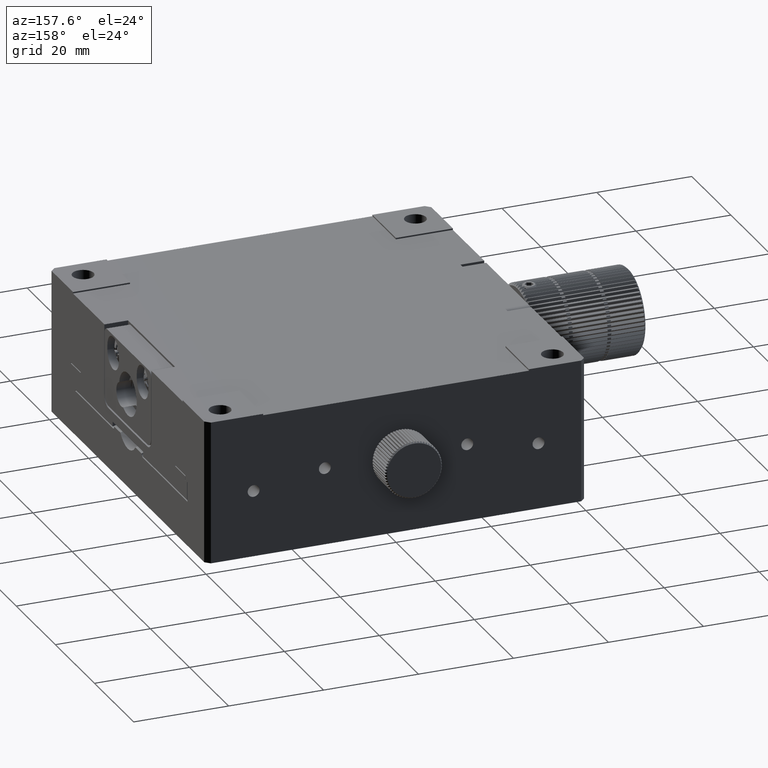
[diagram: clean part render]
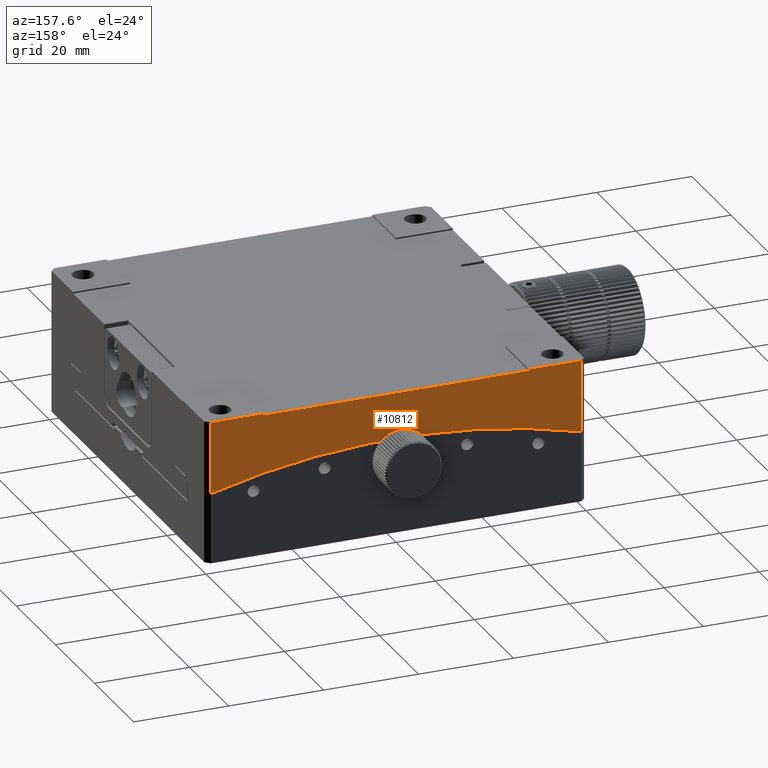
[diagram: same view with one face highlighted and labeled with its STEP entity id]
A machine part, auxiliary view. The second image highlights one B-rep face of the part: STEP entity #10812.
In plain terms, the highlighted planar face has unit normal (0, 1, 0).
Its self-contained STEP definition (entity closure, byte-faithful):
#410 = EDGE_CURVE ( 'NONE', #2517, #2296, #16471, .T. ) ;
#2296 = VERTEX_POINT ( 'NONE', #67044 ) ;
#2517 = VERTEX_POINT ( 'NONE', #58942 ) ;
#2562 = DIRECTION ( 'NONE',  ( -0.000000000000000000, -1.000000000000000000, -0.000000000000000000 ) ) ;
#4536 = LINE ( 'NONE', #41688, #50260 ) ;
#4718 = ORIENTED_EDGE ( 'NONE', *, *, #36784, .T. ) ;
#8998 = CARTESIAN_POINT ( 'NONE',  ( 28.00000000000001066, 40.00000000000002132, 160.0000000000000284 ) ) ;
#9535 = EDGE_CURVE ( 'NONE', #67795, #72559, #40634, .T. ) ;
#9742 = DIRECTION ( 'NONE',  ( 0.000000000000000000, -0.000000000000000000, 1.000000000000000000 ) ) ;
#10223 = EDGE_CURVE ( 'NONE', #72559, #29376, #33324, .T. ) ;
#10812 = ADVANCED_FACE ( 'NONE', ( #69189 ), #74961, .T. ) ;
#10897 = CARTESIAN_POINT ( 'NONE',  ( 39.00000000000000000, 40.00000000000002132, 160.0000000000000284 ) ) ;
#11190 = ORIENTED_EDGE ( 'NONE', *, *, #410, .F. ) ;
#13927 = DIRECTION ( 'NONE',  ( 0.000000000000000000, -0.000000000000000000, 1.000000000000000000 ) ) ;
#16471 = LINE ( 'NONE', #47355, #39823 ) ;
#19631 = LINE ( 'NONE', #39046, #61367 ) ;
#23464 = DIRECTION ( 'NONE',  ( -1.000000000000000000, -0.000000000000000000, 0.000000000000000000 ) ) ;
#23476 = AXIS2_PLACEMENT_3D ( 'NONE', #59069, #2562, #27755 ) ;
#23944 = DIRECTION ( 'NONE',  ( 0.000000000000000000, -0.000000000000000000, 1.000000000000000000 ) ) ;
#25509 = EDGE_CURVE ( 'NONE', #2296, #49519, #71271, .T. ) ;
#27755 = DIRECTION ( 'NONE',  ( 0.000000000000000000, 0.000000000000000000, -1.000000000000000000 ) ) ;
#29138 = ORIENTED_EDGE ( 'NONE', *, *, #25509, .F. ) ;
#29376 = VERTEX_POINT ( 'NONE', #47934 ) ;
#31680 = ORIENTED_EDGE ( 'NONE', *, *, #37272, .T. ) ;
#33197 = CARTESIAN_POINT ( 'NONE',  ( 0.000000000000000000, 40.00000000000002132, 160.0000000000000284 ) ) ;
#33324 = LINE ( 'NONE', #58442, #55117 ) ;
#36784 = EDGE_CURVE ( 'NONE', #29376, #49519, #59932, .T. ) ;
#37272 = EDGE_CURVE ( 'NONE', #2517, #72146, #4536, .T. ) ;
#39046 = CARTESIAN_POINT ( 'NONE',  ( 39.00000000000000000, 40.00000000000002132, -150.0000000000000853 ) ) ;
#39823 = VECTOR ( 'NONE', #23464, 1000.000000000000000 ) ;
#40634 = CIRCLE ( 'NONE', #23476, 150.0000000000000568 ) ;
#40898 = VERTEX_POINT ( 'NONE', #10897 ) ;
#41604 = ORIENTED_EDGE ( 'NONE', *, *, #9535, .T. ) ;
#41688 = CARTESIAN_POINT ( 'NONE',  ( 28.00000000000001066, 40.00000000000002132, -150.0000000000000853 ) ) ;
#43311 = AXIS2_PLACEMENT_3D ( 'NONE', #51027, #51426, #13927 ) ;
#43919 = ORIENTED_EDGE ( 'NONE', *, *, #10223, .T. ) ;
#45938 = ORIENTED_EDGE ( 'NONE', *, *, #47625, .T. ) ;
#46098 = DIRECTION ( 'NONE',  ( -0.000000000000000000, -0.000000000000000000, 1.000000000000000000 ) ) ;
#47355 = CARTESIAN_POINT ( 'NONE',  ( 0.000000000000000000, 40.00000000000000711, 159.7000000000000455 ) ) ;
#47625 = EDGE_CURVE ( 'NONE', #72146, #40898, #60520, .T. ) ;
#47934 = CARTESIAN_POINT ( 'NONE',  ( -38.99999999999998579, 40.00000000000002132, 160.0000000000000568 ) ) ;
#47995 = VECTOR ( 'NONE', #71290, 1000.000000000000000 ) ;
#48947 = CARTESIAN_POINT ( 'NONE',  ( -28.00000000000000711, 40.00000000000001421, 160.0000000000000284 ) ) ;
#49519 = VERTEX_POINT ( 'NONE', #48947 ) ;
#50260 = VECTOR ( 'NONE', #23944, 1000.000000000000000 ) ;
#51027 = CARTESIAN_POINT ( 'NONE',  ( 0.000000000000000000, 40.00000000000002132, -150.0000000000000853 ) ) ;
#51426 = DIRECTION ( 'NONE',  ( 0.000000000000000000, 1.000000000000000000, 0.000000000000000000 ) ) ;
#52176 = EDGE_CURVE ( 'NONE', #40898, #67795, #19631, .T. ) ;
#55117 = VECTOR ( 'NONE', #9742, 1000.000000000000000 ) ;
#58442 = CARTESIAN_POINT ( 'NONE',  ( -38.99999999999998579, 40.00000000000002132, -150.0000000000000853 ) ) ;
#58942 = CARTESIAN_POINT ( 'NONE',  ( 28.00000000000001066, 40.00000000000002132, 159.7000000000000171 ) ) ;
#59069 = CARTESIAN_POINT ( 'NONE',  ( 0.000000000000000000, 40.00000000000002132, 0.000000000000000000 ) ) ;
#59932 = LINE ( 'NONE', #33197, #71305 ) ;
#60520 = LINE ( 'NONE', #79095, #47995 ) ;
#61367 = VECTOR ( 'NONE', #69131, 1000.000000000000000 ) ;
#63368 = CARTESIAN_POINT ( 'NONE',  ( 39.00000000000000711, 40.00000000000002132, 144.8412924548797491 ) ) ;
#64962 = CARTESIAN_POINT ( 'NONE',  ( -38.99999999999999289, 40.00000000000002132, 144.8412924548797491 ) ) ;
#65482 = CARTESIAN_POINT ( 'NONE',  ( -28.00000000000000355, 40.00000000000001421, 159.7000000000000455 ) ) ;
#67044 = CARTESIAN_POINT ( 'NONE',  ( -28.00000000000000355, 40.00000000000001421, 159.7000000000000171 ) ) ;
#67795 = VERTEX_POINT ( 'NONE', #63368 ) ;
#69131 = DIRECTION ( 'NONE',  ( -0.000000000000000000, 0.000000000000000000, -1.000000000000000000 ) ) ;
#69189 = FACE_OUTER_BOUND ( 'NONE', #74373, .T. ) ;
#71271 = LINE ( 'NONE', #65482, #76985 ) ;
#71290 = DIRECTION ( 'NONE',  ( 1.000000000000000000, 0.000000000000000000, -0.000000000000000000 ) ) ;
#71305 = VECTOR ( 'NONE', #78896, 1000.000000000000000 ) ;
#72146 = VERTEX_POINT ( 'NONE', #8998 ) ;
#72559 = VERTEX_POINT ( 'NONE', #64962 ) ;
#74373 = EDGE_LOOP ( 'NONE', ( #45938, #79543, #41604, #43919, #4718, #29138, #11190, #31680 ) ) ;
#74961 = PLANE ( 'NONE',  #43311 ) ;
#76985 = VECTOR ( 'NONE', #46098, 1000.000000000000000 ) ;
#78896 = DIRECTION ( 'NONE',  ( 1.000000000000000000, 0.000000000000000000, -0.000000000000000000 ) ) ;
#79095 = CARTESIAN_POINT ( 'NONE',  ( 0.000000000000000000, 40.00000000000002132, 160.0000000000000284 ) ) ;
#79543 = ORIENTED_EDGE ( 'NONE', *, *, #52176, .T. ) ;